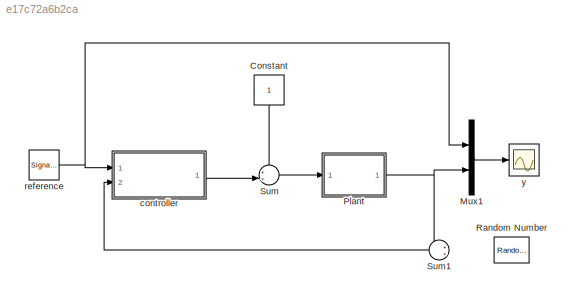
MODEL slx_e17c72a6b2ca
KIND model
CONFIG AbsTol = auto
CONFIG FixedStep = auto
CONFIG InitFcn = param
CONFIG MaxStep = auto
CONFIG MinStep = auto
CONFIG RelTol = 1e-3
CONFIG SampleTimeConstraint = Unconstrained
CONFIG Solver = ode45
CONFIG SolverMode = Auto
CONFIG SolverName = ode45
CONFIG StartTime = 0.0
CONFIG StopTime = 500
BLOCK [Constant] Constant
BLOCK [Mux] Mux1
  DisplayOption = bar
  Inputs = 2
  Ports = [2, 1]
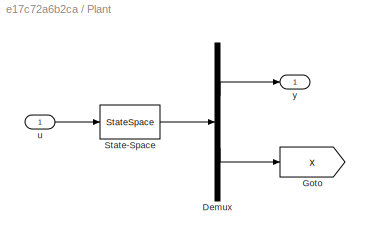
BLOCK [SubSystem] Plant
  Ports = [1, 1]
  RequestExecContextInheritance = off
  Variant = off
BLOCK [Demux] Plant/Demux
  DisplayOption = bar
  Outputs = [1;2]
  Ports = [1, 2]
BLOCK [Goto] Plant/Goto
  GotoTag = x
  TagVisibility = global
BLOCK [StateSpace] Plant/State-Space
  A = P.A+0.0*randn(2,2)
  B = P.B
  C = [P.C; eye(2)]
  D = [P.D; 0; 0]
  Ports = [1, 1]
  X0 = [0;0]
BLOCK [Inport] Plant/u
  IconDisplay = Port number
BLOCK [Outport] Plant/y
  IconDisplay = Port number
BLOCK [RandomNumber] Random Number
  SampleTime = 0.1
  Variance = .01^2
BLOCK [Sum] Sum
  IconShape = round
  InputSameDT = off
  Inputs = ++|
  OutDataTypeStr = Inherit: Inherit via internal rule
  Ports = [2, 1]
  SaturateOnIntegerOverflow = off
BLOCK [Sum] Sum1
  IconShape = round
  InputSameDT = off
  Inputs = ++|
  OutDataTypeStr = Inherit: Inherit via internal rule
  Ports = [2, 1]
  SaturateOnIntegerOverflow = off
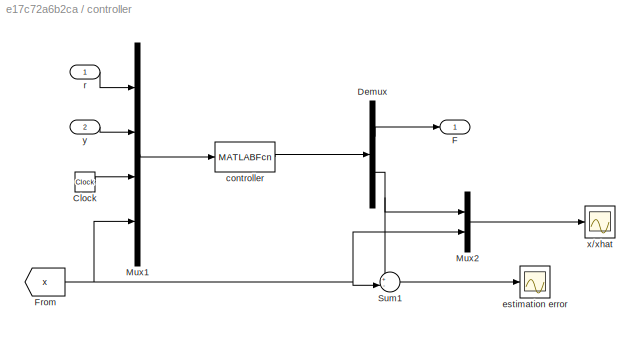
BLOCK [SubSystem] controller
  Ports = [2, 1]
  RequestExecContextInheritance = off
  Variant = off
BLOCK [Clock] controller/Clock
BLOCK [Demux] controller/Demux
  DisplayOption = bar
  Outputs = [1;2]
  Ports = [1, 2]
BLOCK [Outport] controller/F
  IconDisplay = Port number
BLOCK [From] controller/From
  GotoTag = x
  TagVisibility = global
BLOCK [Mux] controller/Mux1
  DisplayOption = bar
  Ports = [4, 1]
BLOCK [Mux] controller/Mux2
  DisplayOption = bar
  Inputs = 2
  Ports = [2, 1]
BLOCK [Sum] controller/Sum1
  IconShape = round
  InputSameDT = off
  Inputs = +-|
  OutDataTypeStr = Inherit: Inherit via internal rule
  Ports = [2, 1]
  SaturateOnIntegerOverflow = off
BLOCK [MATLABFcn] controller/controller
  MATLABFcn = ctrl(u,P)
  OutputDimensions = 1+2
  Ports = [1, 1]
  SampleTime = P.Ts
BLOCK [Scope] controller/estimation error
  Ports = [1]
  ScopeSpecificationString = Simulink.scopes.TimeScopeBlockCfg('CurrentConfiguration', extmgr.ConfigurationSet(extmgr.Configuration('Core','General UI',true,'FigureColor',[1 1 1]),extmgr.Configuration('Core','Source UI',true),extmgr.Configuration('Sources','WiredSimulink',true,'DataLoggingSaveFormat','StructureWithTime','DataLoggingDecimation','1','DataLoggingDecimateData',true),extmgr.Configuration('Visuals','Time Domain',tr...<+2813ch>
BLOCK [Inport] controller/r
  IconDisplay = Port number
BLOCK [Scope] controller/x//xhat
  Ports = [1]
  ScopeSpecificationString = Simulink.scopes.TimeScopeBlockCfg('CurrentConfiguration', extmgr.ConfigurationSet(extmgr.Configuration('Core','General UI',true,'FigureColor',[1 1 1]),extmgr.Configuration('Core','Source UI',true),extmgr.Configuration('Sources','WiredSimulink',true,'DataLoggingVariableName','ScopeData3','DataLoggingSaveFormat','StructureWithTime','DataLoggingDecimation','1','DataLoggingDecimateData',true),extmgr.C...<+2877ch>
BLOCK [Inport] controller/y
  IconDisplay = Port number
  Port = 2
BLOCK [SignalGenerator] reference
  Frequency = 0.01
  Ports = [0, 1]
  WaveForm = square
BLOCK [Scope] y
  Ports = [1]
  ScopeSpecificationString = Simulink.scopes.TimeScopeBlockCfg('CurrentConfiguration', extmgr.ConfigurationSet(extmgr.Configuration('Core','General UI',true,'FigureColor',[1 1 1]),extmgr.Configuration('Core','Source UI',true),extmgr.Configuration('Sources','WiredSimulink',true,'DataLoggingVariableName','ScopeData1','DataLoggingSaveFormat','StructureWithTime','DataLoggingDecimation','1','DataLoggingDecimateData',true),extmgr.C...<+2785ch>
LINE Constant:1 -> Sum:1
LINE Mux1:1 -> y:1
LINE Plant/Demux:1 -> Plant/y:1
LINE Plant/Demux:2 -> Plant/Goto:1
LINE Plant/State-Space:1 -> Plant/Demux:1
LINE Plant/u:1 -> Plant/State-Space:1
NET Plant:1 -> Mux1:2, Sum1:1
LINE Sum1:1 -> controller:2
LINE Sum:1 -> Plant:1
LINE controller/Clock:1 -> controller/Mux1:3
LINE controller/Demux:1 -> controller/F:1
NET controller/Demux:2 -> controller/Mux2:1, controller/Sum1:1
NET controller/From:1 -> controller/Mux1:4, controller/Mux2:2, controller/Sum1:2
LINE controller/Mux1:1 -> controller/controller:1
LINE controller/Mux2:1 -> controller/x//xhat:1
LINE controller/Sum1:1 -> controller/estimation error:1
LINE controller/controller:1 -> controller/Demux:1
LINE controller/r:1 -> controller/Mux1:1
LINE controller/y:1 -> controller/Mux1:2
LINE controller:1 -> Sum:2
NET reference:1 -> Mux1:1, controller:1
note: NET lines group one-source signal fan-out (src -> all destinations, sorted); 1:1 wires keep LINE
